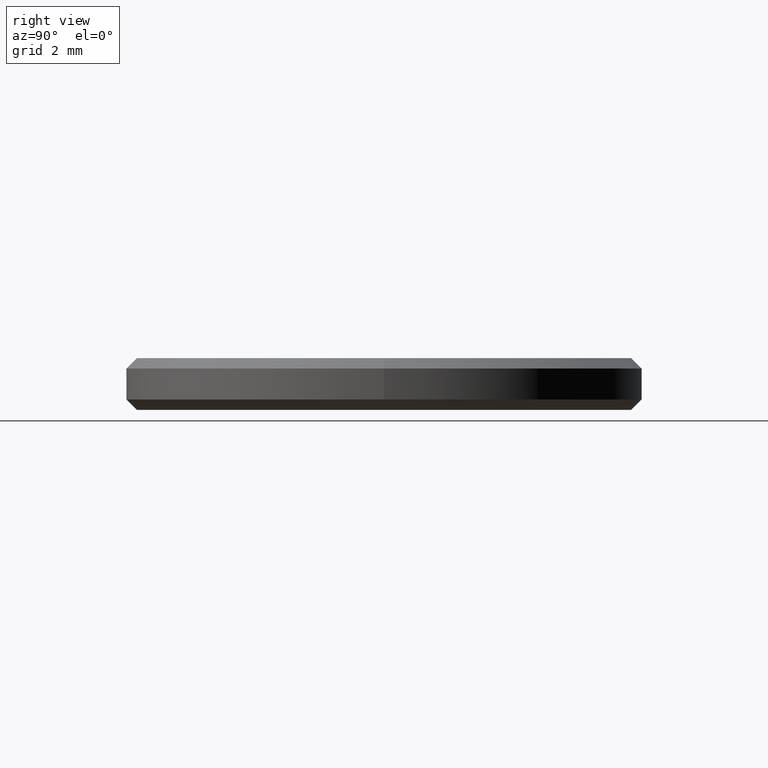
[diagram: clean part render]
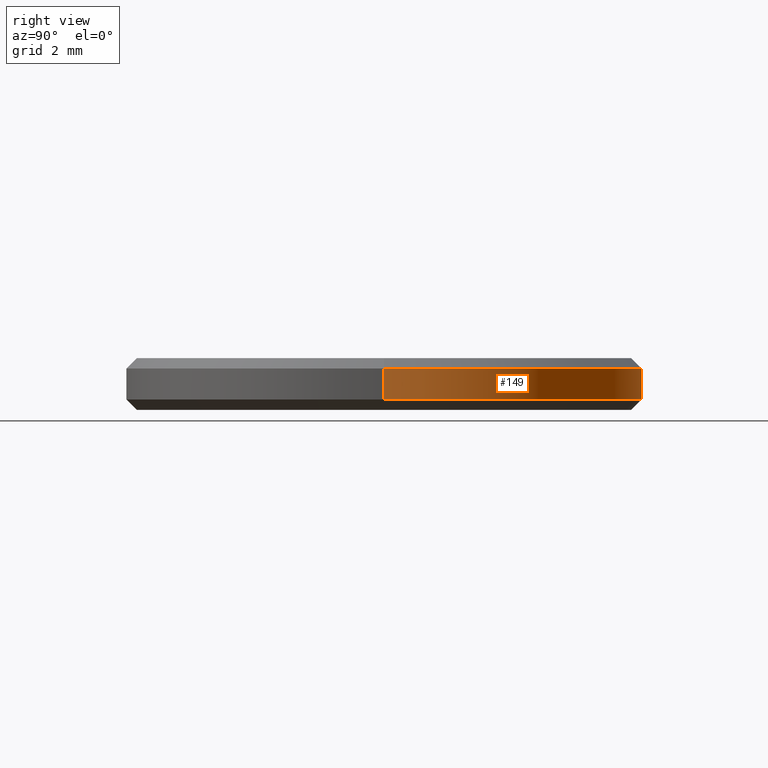
[diagram: same view with one face highlighted and labeled with its STEP entity id]
A machine part, right view. The second image highlights one B-rep face of the part: STEP entity #149.
In plain terms, the highlighted cylindrical surface (partial cylindrical patch) has radius 5 mm, axis along (-0, -0, -1).
Its self-contained STEP definition (entity closure, byte-faithful):
#9 = ORIENTED_EDGE ( 'NONE', *, *, #73, .F. ) ;
#11 = EDGE_CURVE ( 'NONE', #164, #35, #213, .T. ) ;
#29 = DIRECTION ( 'NONE',  ( 1.000000000000000000, 0.000000000000000000, 0.000000000000000000 ) ) ;
#31 = DIRECTION ( 'NONE',  ( -0.000000000000000000, -0.000000000000000000, 1.000000000000000000 ) ) ;
#35 = VERTEX_POINT ( 'NONE', #45 ) ;
#38 = VECTOR ( 'NONE', #178, 1000.000000000000000 ) ;
#45 = CARTESIAN_POINT ( 'NONE',  ( 5.000000000000000000, 6.123233995736766282E-16, 0.8000000000000012657 ) ) ;
#47 = CYLINDRICAL_SURFACE ( 'NONE', #226, 5.000000000000000000 ) ;
#51 = CARTESIAN_POINT ( 'NONE',  ( 0.000000000000000000, 0.000000000000000000, 1.000000000000000000 ) ) ;
#69 = CARTESIAN_POINT ( 'NONE',  ( -5.000000000000000000, 0.000000000000000000, 0.8000000000000012657 ) ) ;
#71 = CARTESIAN_POINT ( 'NONE',  ( -5.000000000000000000, 0.000000000000000000, 0.1999999999999996503 ) ) ;
#73 = EDGE_CURVE ( 'NONE', #164, #201, #169, .T. ) ;
#80 = CIRCLE ( 'NONE', #207, 5.000000000000000000 ) ;
#86 = FACE_OUTER_BOUND ( 'NONE', #98, .T. ) ;
#98 = EDGE_LOOP ( 'NONE', ( #126, #235, #218, #9 ) ) ;
#119 = DIRECTION ( 'NONE',  ( -1.000000000000000000, 0.000000000000000000, 0.000000000000000000 ) ) ;
#121 = EDGE_CURVE ( 'NONE', #128, #201, #80, .T. ) ;
#126 = ORIENTED_EDGE ( 'NONE', *, *, #11, .T. ) ;
#128 = VERTEX_POINT ( 'NONE', #211 ) ;
#129 = CARTESIAN_POINT ( 'NONE',  ( -5.000000000000000000, 0.000000000000000000, 1.000000000000000000 ) ) ;
#132 = DIRECTION ( 'NONE',  ( 1.000000000000000000, 0.000000000000000000, 0.000000000000000000 ) ) ;
#143 = VECTOR ( 'NONE', #186, 1000.000000000000000 ) ;
#149 = ADVANCED_FACE ( 'NONE', ( #86 ), #47, .T. ) ;
#156 = DIRECTION ( 'NONE',  ( -0.000000000000000000, -0.000000000000000000, -1.000000000000000000 ) ) ;
#158 = LINE ( 'NONE', #162, #38 ) ;
#162 = CARTESIAN_POINT ( 'NONE',  ( 5.000000000000000000, 6.123233995736766282E-16, 1.000000000000000000 ) ) ;
#164 = VERTEX_POINT ( 'NONE', #69 ) ;
#169 = LINE ( 'NONE', #129, #143 ) ;
#178 = DIRECTION ( 'NONE',  ( -0.000000000000000000, -0.000000000000000000, -1.000000000000000000 ) ) ;
#185 = CARTESIAN_POINT ( 'NONE',  ( 0.000000000000000000, 0.000000000000000000, 0.1999999999999996503 ) ) ;
#186 = DIRECTION ( 'NONE',  ( -0.000000000000000000, -0.000000000000000000, -1.000000000000000000 ) ) ;
#201 = VERTEX_POINT ( 'NONE', #71 ) ;
#203 = DIRECTION ( 'NONE',  ( 0.000000000000000000, 0.000000000000000000, -1.000000000000000000 ) ) ;
#204 = EDGE_CURVE ( 'NONE', #35, #128, #158, .T. ) ;
#207 = AXIS2_PLACEMENT_3D ( 'NONE', #185, #31, #29 ) ;
#211 = CARTESIAN_POINT ( 'NONE',  ( 5.000000000000000000, 6.123233995736766282E-16, 0.1999999999999996503 ) ) ;
#213 = CIRCLE ( 'NONE', #221, 5.000000000000000000 ) ;
#218 = ORIENTED_EDGE ( 'NONE', *, *, #121, .T. ) ;
#221 = AXIS2_PLACEMENT_3D ( 'NONE', #224, #203, #132 ) ;
#224 = CARTESIAN_POINT ( 'NONE',  ( 0.000000000000000000, 0.000000000000000000, 0.8000000000000012657 ) ) ;
#226 = AXIS2_PLACEMENT_3D ( 'NONE', #51, #156, #119 ) ;
#235 = ORIENTED_EDGE ( 'NONE', *, *, #204, .T. ) ;